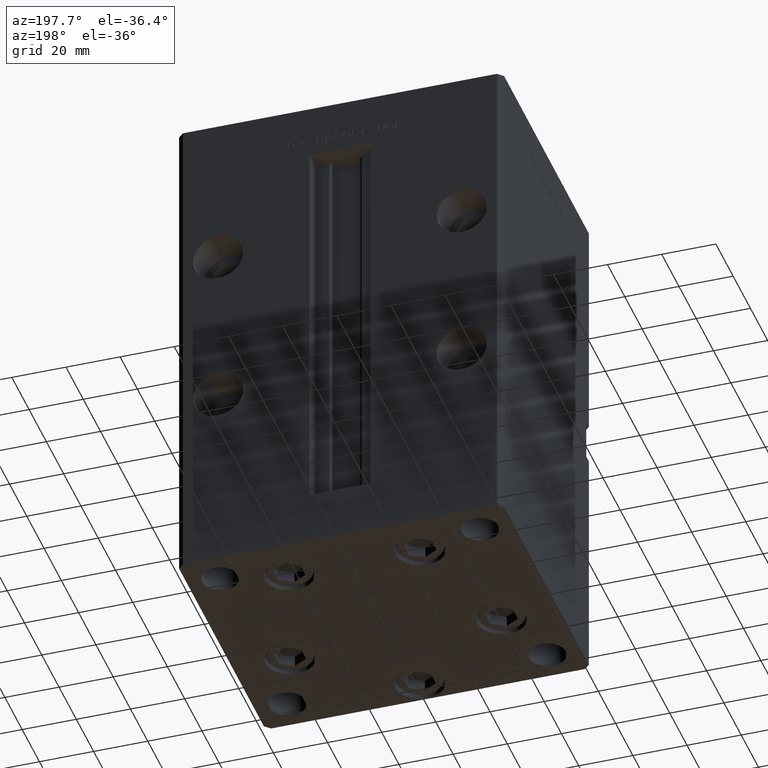
[diagram: clean part render]
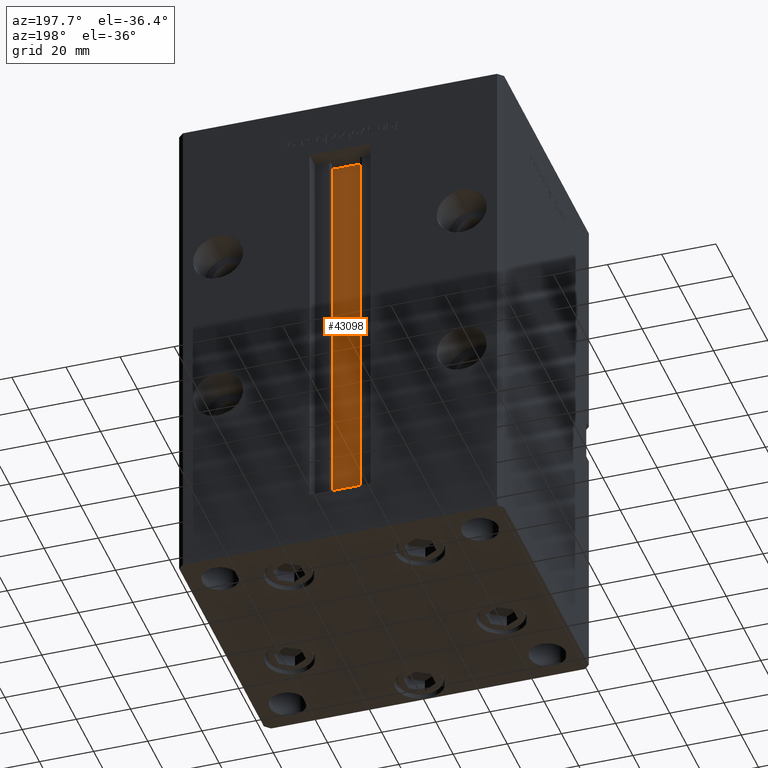
[diagram: same view with one face highlighted and labeled with its STEP entity id]
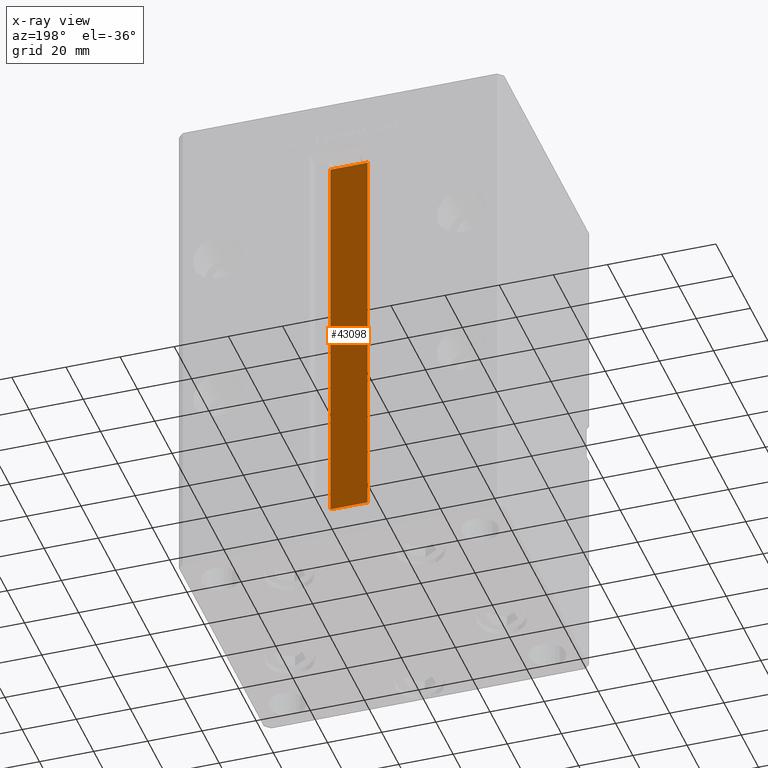
[diagram: x-ray of the same camera — body ghosted, the highlighted face saturated]
A machine part, auxiliary view. The second image highlights one B-rep face of the part: STEP entity #43098.
The next image is the same camera in x-ray: the body ghosted, the highlighted face saturated — about 0% of this face is hidden behind the body in this view.
In plain terms, the highlighted planar face has unit normal (0, -1, 0).
Its self-contained STEP definition (entity closure, byte-faithful):
#3621 = ORIENTED_EDGE ( 'NONE', *, *, #39933, .T. ) ;
#4003 = CARTESIAN_POINT ( 'NONE',  ( -6.876153656360465050, 40.49999999999987210, 0.000000000000000000 ) ) ;
#4124 = LINE ( 'NONE', #12712, #41129 ) ;
#4887 = VECTOR ( 'NONE', #9411, 1000.000000000000000 ) ;
#5431 = EDGE_LOOP ( 'NONE', ( #28958, #48129, #3621, #34946 ) ) ;
#5590 = LINE ( 'NONE', #30247, #21418 ) ;
#8013 = CARTESIAN_POINT ( 'NONE',  ( 6.876153656360465050, 40.49999999999987210, 0.000000000000000000 ) ) ;
#8819 = PLANE ( 'NONE',  #22889 ) ;
#9411 = DIRECTION ( 'NONE',  ( -1.000000000000000000, 0.000000000000000000, 0.000000000000000000 ) ) ;
#11727 = DIRECTION ( 'NONE',  ( -0.000000000000000000, -0.000000000000000000, 1.000000000000000000 ) ) ;
#12712 = CARTESIAN_POINT ( 'NONE',  ( 6.876153656360465050, 40.49999999999987210, 0.000000000000000000 ) ) ;
#13238 = EDGE_CURVE ( 'NONE', #31699, #30299, #5590, .T. ) ;
#18427 = EDGE_CURVE ( 'NONE', #30299, #34469, #4124, .T. ) ;
#18542 = LINE ( 'NONE', #26563, #4887 ) ;
#18620 = VERTEX_POINT ( 'NONE', #24179 ) ;
#21418 = VECTOR ( 'NONE', #46334, 1000.000000000000000 ) ;
#22889 = AXIS2_PLACEMENT_3D ( 'NONE', #8013, #48519, #24123 ) ;
#24123 = DIRECTION ( 'NONE',  ( 0.000000000000000000, 0.000000000000000000, -1.000000000000000000 ) ) ;
#24179 = CARTESIAN_POINT ( 'NONE',  ( -6.876153656360465050, 40.49999999999987210, 148.5000000000000000 ) ) ;
#26563 = CARTESIAN_POINT ( 'NONE',  ( 0.000000000000000000, 40.49999999999987210, 148.5000000000000000 ) ) ;
#28547 = CARTESIAN_POINT ( 'NONE',  ( 6.876153656360465050, 40.49999999999987210, 0.000000000000000000 ) ) ;
#28958 = ORIENTED_EDGE ( 'NONE', *, *, #18427, .F. ) ;
#30247 = CARTESIAN_POINT ( 'NONE',  ( 6.876153656360465050, 40.49999999999987210, 0.000000000000000000 ) ) ;
#30299 = VERTEX_POINT ( 'NONE', #28547 ) ;
#31699 = VERTEX_POINT ( 'NONE', #4003 ) ;
#34469 = VERTEX_POINT ( 'NONE', #49733 ) ;
#34946 = ORIENTED_EDGE ( 'NONE', *, *, #42909, .F. ) ;
#36711 = FACE_OUTER_BOUND ( 'NONE', #5431, .T. ) ;
#39620 = LINE ( 'NONE', #48454, #51934 ) ;
#39933 = EDGE_CURVE ( 'NONE', #31699, #18620, #39620, .T. ) ;
#41129 = VECTOR ( 'NONE', #45137, 1000.000000000000000 ) ;
#42909 = EDGE_CURVE ( 'NONE', #34469, #18620, #18542, .T. ) ;
#43098 = ADVANCED_FACE ( 'NONE', ( #36711 ), #8819, .F. ) ;
#45137 = DIRECTION ( 'NONE',  ( -0.000000000000000000, -0.000000000000000000, 1.000000000000000000 ) ) ;
#46334 = DIRECTION ( 'NONE',  ( 1.000000000000000000, -0.000000000000000000, -0.000000000000000000 ) ) ;
#48129 = ORIENTED_EDGE ( 'NONE', *, *, #13238, .F. ) ;
#48454 = CARTESIAN_POINT ( 'NONE',  ( -6.876153656360465050, 40.49999999999987210, 0.000000000000000000 ) ) ;
#48519 = DIRECTION ( 'NONE',  ( 0.000000000000000000, -1.000000000000000000, -0.000000000000000000 ) ) ;
#49733 = CARTESIAN_POINT ( 'NONE',  ( 6.876153656360465050, 40.49999999999987210, 148.5000000000000000 ) ) ;
#51934 = VECTOR ( 'NONE', #11727, 1000.000000000000000 ) ;